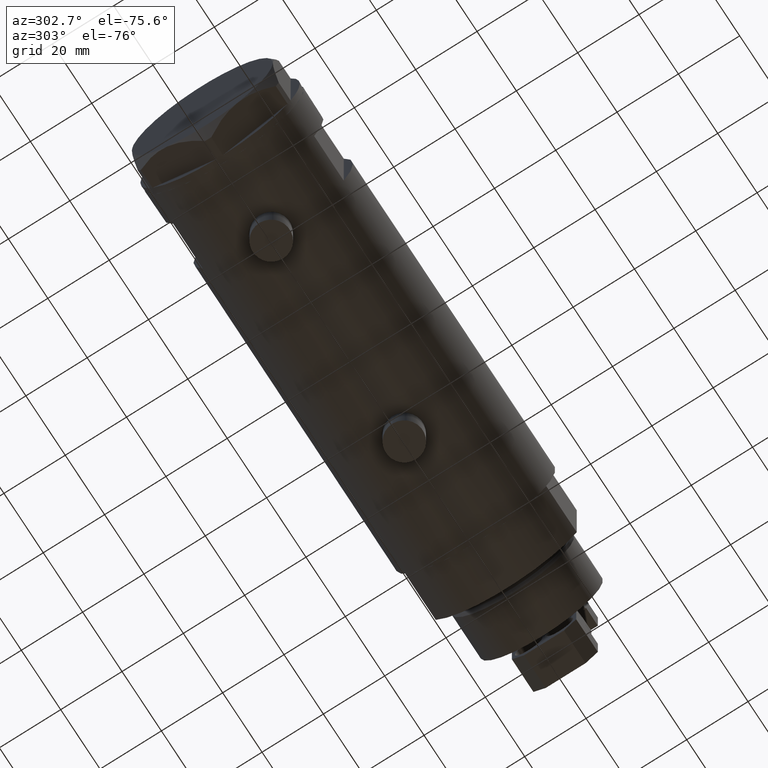
[diagram: clean part render]
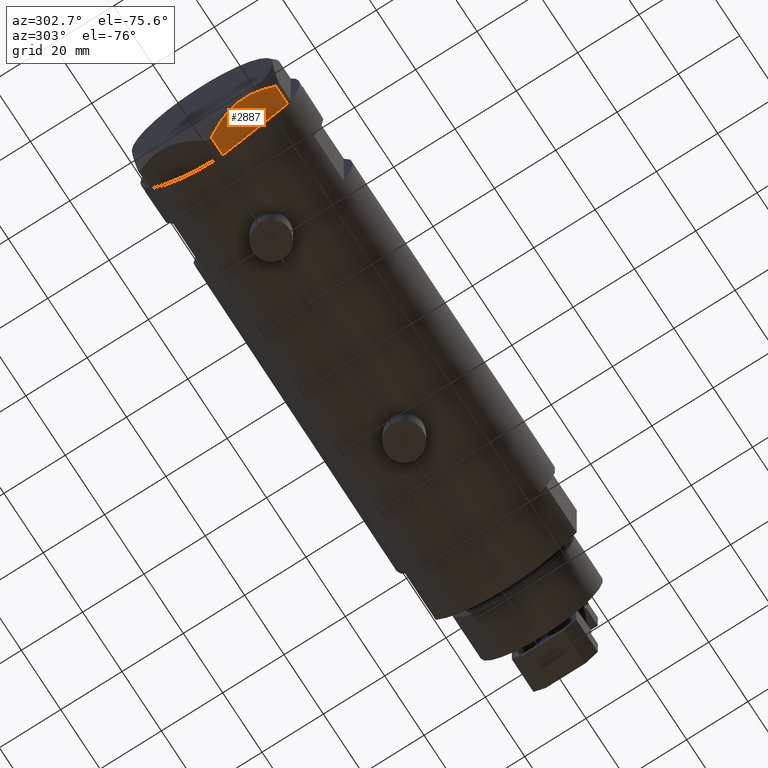
[diagram: same view with one face highlighted and labeled with its STEP entity id]
A machine part, auxiliary view. The second image highlights one B-rep face of the part: STEP entity #2887.
In plain terms, the highlighted planar face has unit normal (0, 0.5, 0.866).
Its self-contained STEP definition (entity closure, byte-faithful):
#121 = CARTESIAN_POINT ( 'NONE',  ( -22.03005154776143115, 13.83905619136131726, 9.000000000000000000 ) ) ;
#287 = DIRECTION ( 'NONE',  ( -0.8660254037844380415, -0.5000000000000008882, 0.000000000000000000 ) ) ;
#292 = DIRECTION ( 'NONE',  ( 0.000000000000000000, 0.000000000000000000, -1.000000000000000000 ) ) ;
#620 = DIRECTION ( 'NONE',  ( -0.8660254037844380415, -0.5000000000000008882, 0.000000000000000000 ) ) ;
#670 = VERTEX_POINT ( 'NONE', #5128 ) ;
#734 = B_SPLINE_CURVE_WITH_KNOTS ( 'NONE', 3,
 ( #5276, #5248, #3135, #4488, #5355, #2712, #1376, #1433, #4878, #4820 ),
 .UNSPECIFIED., .F., .F.,
 ( 4, 2, 2, 2, 4 ),
 ( 0.001228959670438516723, 0.007497079744270820564, 0.01063113978118697227, 0.01219816979964504812, 0.01376519981810312397 ),
 .UNSPECIFIED. ) ;
#746 = VERTEX_POINT ( 'NONE', #4369 ) ;
#757 = CARTESIAN_POINT ( 'NONE',  ( -17.77001848220191604, 16.29858742851882170, 7.892128867758443356 ) ) ;
#815 = ORIENTED_EDGE ( 'NONE', *, *, #4479, .T. ) ;
#903 = FACE_OUTER_BOUND ( 'NONE', #944, .T. ) ;
#944 = EDGE_LOOP ( 'NONE', ( #3739, #815, #4459, #4591, #3251, #3963, #3342 ) ) ;
#988 = CARTESIAN_POINT ( 'NONE',  ( 0.000000000000000000, 26.55811238272274366, 9.000000000000000000 ) ) ;
#1051 = LINE ( 'NONE', #2789, #1317 ) ;
#1081 = CARTESIAN_POINT ( 'NONE',  ( -22.03005154776144181, 13.83905619136131371, 5.983800287807625295 ) ) ;
#1136 = CARTESIAN_POINT ( 'NONE',  ( -21.20080365460318461, 14.31782268570115768, 6.431317509509388408 ) ) ;
#1210 = CARTESIAN_POINT ( 'NONE',  ( -22.03005154776144181, 13.83905619136131371, 5.983800287807625295 ) ) ;
#1253 = VECTOR ( 'NONE', #5312, 1000.000000000000000 ) ;
#1317 = VECTOR ( 'NONE', #620, 1000.000000000000227 ) ;
#1372 = LINE ( 'NONE', #1747, #2265 ) ;
#1376 = CARTESIAN_POINT ( 'NONE',  ( -9.656518383329848021, 20.98291889467267168, 8.907842277728436287 ) ) ;
#1433 = CARTESIAN_POINT ( 'NONE',  ( -10.58093321976963175, 20.44920774001128549, 8.981686407609499767 ) ) ;
#1461 = CARTESIAN_POINT ( 'NONE',  ( -0.9699484522384356211, 25.99811238272282310, 5.983800287807548912 ) ) ;
#1554 = LINE ( 'NONE', #3294, #5234 ) ;
#1574 = CARTESIAN_POINT ( 'NONE',  ( -11.50000000000004441, 19.91858428704211548, 9.000000000000000000 ) ) ;
#1603 = LINE ( 'NONE', #2425, #3163 ) ;
#1747 = CARTESIAN_POINT ( 'NONE',  ( 0.000000000000000000, 26.55811238272274366, 0.000000000000000000 ) ) ;
#1881 = B_SPLINE_CURVE_WITH_KNOTS ( 'NONE', 3,
 ( #1574, #2823, #5043, #5440, #757, #4958, #1968, #4621, #1136, #1081 ),
 .UNSPECIFIED., .F., .F.,
 ( 4, 2, 2, 2, 4 ),
 ( 0.01376519981810312397, 0.01998941321701588544, 0.02154546656674408145, 0.02310151991647227399, 0.02621362661592866600 ),
 .UNSPECIFIED. ) ;
#1953 = EDGE_CURVE ( 'NONE', #3139, #3229, #734, .T. ) ;
#1968 = CARTESIAN_POINT ( 'NONE',  ( -19.07486218896994856, 15.54523556316589961, 7.397272853991406549 ) ) ;
#2265 = VECTOR ( 'NONE', #2307, 1000.000000000000227 ) ;
#2277 = DIRECTION ( 'NONE',  ( 0.5000000000000009992, -0.8660254037844381525, 0.000000000000000000 ) ) ;
#2307 = DIRECTION ( 'NONE',  ( -0.8660254037844380415, -0.5000000000000008882, 0.000000000000000000 ) ) ;
#2386 = VERTEX_POINT ( 'NONE', #5351 ) ;
#2425 = CARTESIAN_POINT ( 'NONE',  ( 0.000000000000000000, 26.55811238272274366, 0.000000000000000000 ) ) ;
#2579 = EDGE_CURVE ( 'NONE', #2386, #3657, #1051, .T. ) ;
#2712 = CARTESIAN_POINT ( 'NONE',  ( -9.197898616902920210, 21.24770314027494678, 8.852712638955802404 ) ) ;
#2789 = CARTESIAN_POINT ( 'NONE',  ( 0.000000000000000000, 26.55811238272274366, 0.000000000000000000 ) ) ;
#2823 = CARTESIAN_POINT ( 'NONE',  ( -13.32175508098984729, 18.86679350063496585, 9.000000000000088818 ) ) ;
#2887 = ADVANCED_FACE ( 'NONE', ( #903 ), #3939, .F. ) ;
#3135 = CARTESIAN_POINT ( 'NONE',  ( -4.320186229909880105, 24.06385169993494699, 7.629374868826106493 ) ) ;
#3139 = VERTEX_POINT ( 'NONE', #1461 ) ;
#3163 = VECTOR ( 'NONE', #287, 1000.000000000000227 ) ;
#3229 = VERTEX_POINT ( 'NONE', #3589 ) ;
#3251 = ORIENTED_EDGE ( 'NONE', *, *, #3290, .T. ) ;
#3290 = EDGE_CURVE ( 'NONE', #3139, #2386, #1554, .T. ) ;
#3294 = CARTESIAN_POINT ( 'NONE',  ( -0.9699484522385775076, 25.99811238272273783, 9.000000000000000000 ) ) ;
#3342 = ORIENTED_EDGE ( 'NONE', *, *, #5051, .T. ) ;
#3589 = CARTESIAN_POINT ( 'NONE',  ( -11.50000000000004441, 19.91858428704211548, 9.000000000000000000 ) ) ;
#3657 = VERTEX_POINT ( 'NONE', #3663 ) ;
#3663 = CARTESIAN_POINT ( 'NONE',  ( -0.9999999999999089617, 25.98076211353316367, 0.000000000000000000 ) ) ;
#3685 = EDGE_CURVE ( 'NONE', #3229, #5313, #1881, .T. ) ;
#3739 = ORIENTED_EDGE ( 'NONE', *, *, #5604, .T. ) ;
#3939 = PLANE ( 'NONE',  #5568 ) ;
#3963 = ORIENTED_EDGE ( 'NONE', *, *, #2579, .T. ) ;
#3997 = DIRECTION ( 'NONE',  ( 0.8660254037844380415, 0.5000000000000008882, 0.000000000000000000 ) ) ;
#4369 = CARTESIAN_POINT ( 'NONE',  ( -22.00000000000008171, 13.85640646055089498, 0.000000000000000000 ) ) ;
#4459 = ORIENTED_EDGE ( 'NONE', *, *, #3685, .F. ) ;
#4479 = EDGE_CURVE ( 'NONE', #670, #5313, #4858, .T. ) ;
#4488 = CARTESIAN_POINT ( 'NONE',  ( -6.946777556903624529, 22.54738849024398206, 8.426899937603780089 ) ) ;
#4591 = ORIENTED_EDGE ( 'NONE', *, *, #1953, .F. ) ;
#4621 = CARTESIAN_POINT ( 'NONE',  ( -20.35958612119326361, 14.80349985506240884, 6.844201024438374859 ) ) ;
#4820 = CARTESIAN_POINT ( 'NONE',  ( -11.50000000000004441, 19.91858428704211548, 9.000000000000000000 ) ) ;
#4858 = LINE ( 'NONE', #121, #1253 ) ;
#4878 = CARTESIAN_POINT ( 'NONE',  ( -11.04134848610939557, 20.18338686205100885, 9.000000000000094147 ) ) ;
#4958 = CARTESIAN_POINT ( 'NONE',  ( -18.64279229058394804, 15.79469123530778951, 7.570552255229721084 ) ) ;
#5043 = CARTESIAN_POINT ( 'NONE',  ( -15.11535457301033247, 17.83125835109856183, 8.707651728477001640 ) ) ;
#5051 = EDGE_CURVE ( 'NONE', #3657, #746, #1603, .T. ) ;
#5128 = CARTESIAN_POINT ( 'NONE',  ( -22.03005154776142760, 13.83905619136131904, 0.000000000000000000 ) ) ;
#5234 = VECTOR ( 'NONE', #292, 1000.000000000000000 ) ;
#5248 = CARTESIAN_POINT ( 'NONE',  ( -2.626494320835632390, 25.04170517956325881, 6.877782426143454586 ) ) ;
#5276 = CARTESIAN_POINT ( 'NONE',  ( -0.9699484522384356211, 25.99811238272282310, 5.983800287807548912 ) ) ;
#5312 = DIRECTION ( 'NONE',  ( 0.000000000000000000, 0.000000000000000000, 1.000000000000000000 ) ) ;
#5313 = VERTEX_POINT ( 'NONE', #1210 ) ;
#5351 = CARTESIAN_POINT ( 'NONE',  ( -0.9699484522385772856, 25.99811238272273783, 0.000000000000000000 ) ) ;
#5355 = CARTESIAN_POINT ( 'NONE',  ( -7.836767740116576952, 22.03355241838985279, 8.637313967156947214 ) ) ;
#5440 = CARTESIAN_POINT ( 'NONE',  ( -17.32831362639718975, 16.55360584592005679, 8.040681765829335248 ) ) ;
#5568 = AXIS2_PLACEMENT_3D ( 'NONE', #988, #2277, #3997 ) ;
#5604 = EDGE_CURVE ( 'NONE', #746, #670, #1372, .T. ) ;